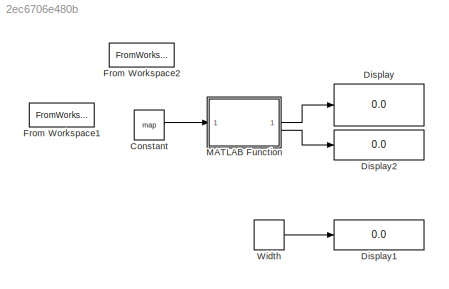
MODEL slx_2ec6706e480b
KIND model
CONFIG AbsTol = auto
CONFIG EnableMultiTasking = off
CONFIG FixedStep = auto
CONFIG MaxStep = auto
CONFIG MinStep = auto
CONFIG RelTol = 1e-3
CONFIG SampleTimeConstraint = Unconstrained
CONFIG SolverName = VariableStepAuto
CONFIG StartTime = 0.0
CONFIG StopTime = 10.0
BLOCK [Constant] Constant
  Value = map
BLOCK [Display] Display
  Decimation = 1
BLOCK [Display] Display1
  Decimation = 1
BLOCK [Display] Display2
  Decimation = 1
BLOCK [FromWorkspace] From Workspace1
  VariableName = map
BLOCK [FromWorkspace] From Workspace2
  VariableName = simulink_data
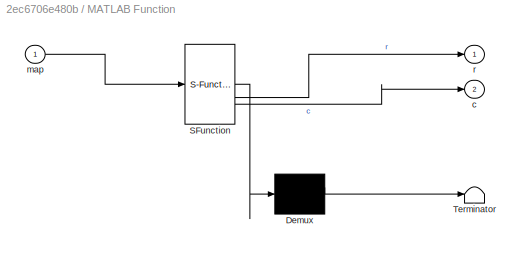
BLOCK [SubSystem] MATLAB Function
  ErrorFcn = Stateflow.Translate.translate
  PermitHierarchicalResolution = ExplicitOnly
  SFBlockType = MATLAB Function
  TreatAsAtomicUnit = on
BLOCK [Demux] MATLAB Function/ Demux 
  Outputs = 1
BLOCK [S-Function] MATLAB Function/ SFunction 
  EnableBusSupport = on
  FunctionName = sf_sfun
  PortCounts = [1 3]
  SFcnIsStateOwnerBlock = off
  SFunctionDeploymentMode = off
  Tag = Stateflow S-Function 2
BLOCK [Terminator] MATLAB Function/ Terminator 
BLOCK [Outport] MATLAB Function/c
  Port = 2
BLOCK [Inport] MATLAB Function/map
BLOCK [Outport] MATLAB Function/r
BLOCK [Width] Width
LINE Constant:1 -> MATLAB Function:1
LINE MATLAB Function:1 -> Display:1
LINE MATLAB Function:2 -> Display2:1
LINE Width:1 -> Display1:1
CHART MATLAB Function states=1 transitions=1
  STATE_LABEL 'eML_blk_kernel()'
  STATE_LABEL 'SCRIPT:\nfunction [r,c] = fcn(map)\n    % map_data = ones(100,100);\n    % [r,c] = size(map_data);\n    [r,c] = size(map);\nend\n'
CHART  states=0 transitions=0
